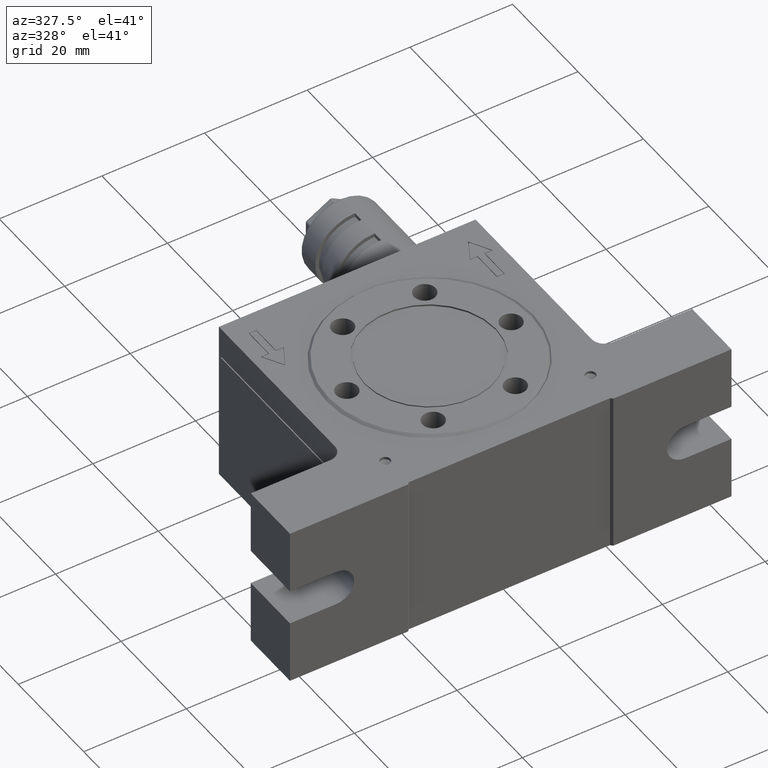
[diagram: clean part render]
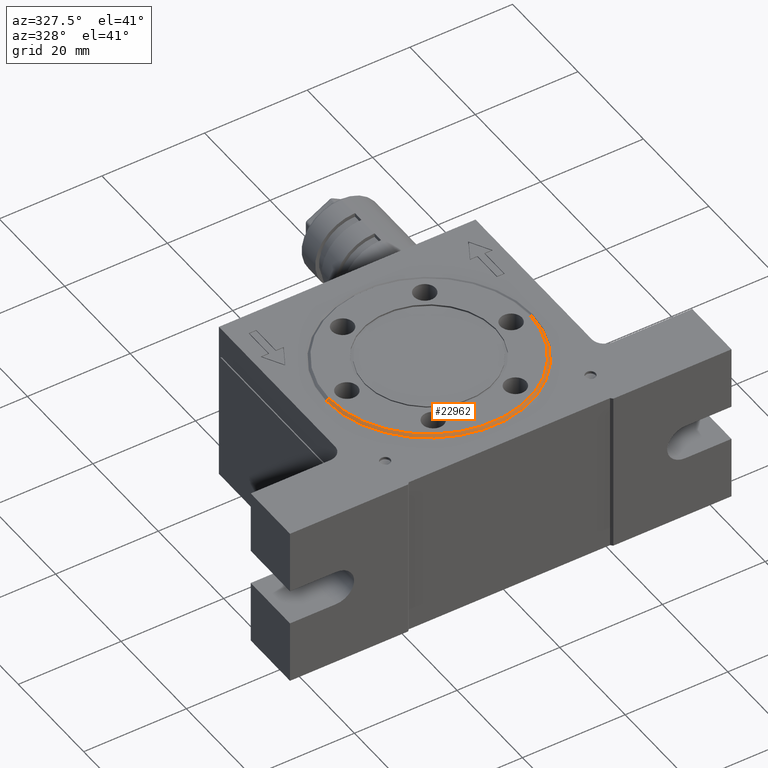
[diagram: same view with one face highlighted and labeled with its STEP entity id]
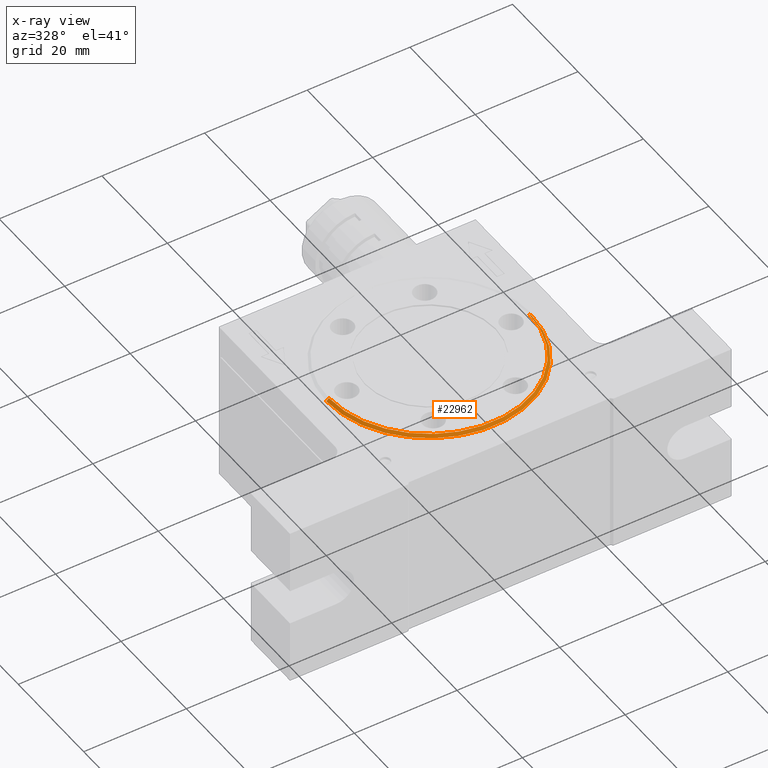
[diagram: x-ray of the same camera — body ghosted, the highlighted face saturated]
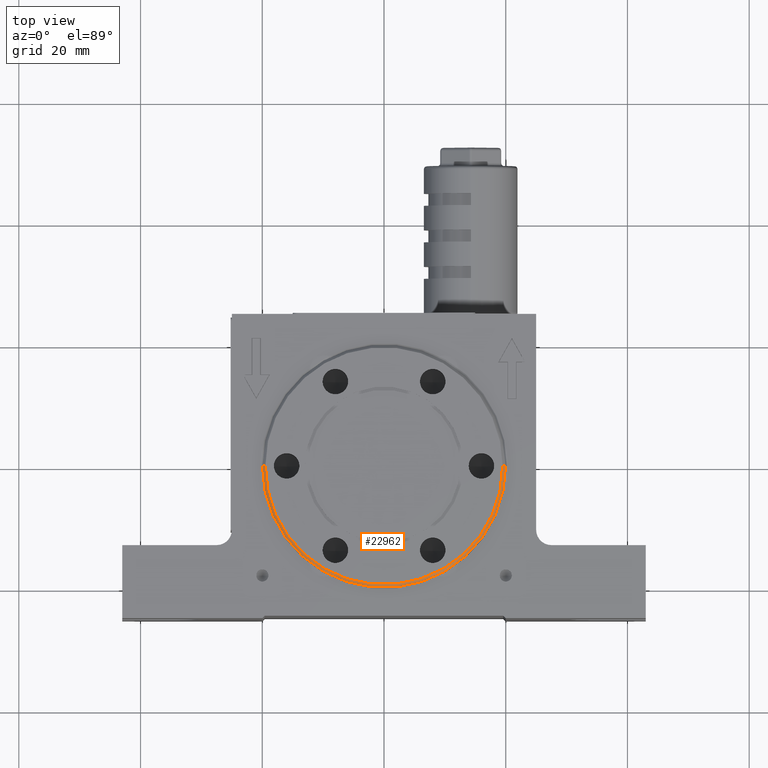
[diagram: same view with one face highlighted and labeled with its STEP entity id]
A machine part, auxiliary view. The second image highlights one B-rep face of the part: STEP entity #22962.
The next image is the same camera in x-ray: the body ghosted, the highlighted face saturated — about 0% of this face is hidden behind the body in this view.
A second angle (top view) of the same face is appended — the face is thin or edge-on in the first view.
In plain terms, the highlighted conical surface has half-angle 45 deg.
Its self-contained STEP definition (entity closure, byte-faithful):
#155 = ORIENTED_EDGE ( 'NONE', *, *, #21666, .F. ) ;
#955 = VECTOR ( 'NONE', #23234, 1000.000000000000100 ) ;
#2694 = ORIENTED_EDGE ( 'NONE', *, *, #13303, .F. ) ;
#4870 = VECTOR ( 'NONE', #19465, 1000.000000000000100 ) ;
#5760 = EDGE_CURVE ( 'NONE', #22123, #25086, #9008, .T. ) ;
#7107 = DIRECTION ( 'NONE',  ( -1.000000000000000000, 0.0000000000000000000, 0.0000000000000000000 ) ) ;
#8504 = EDGE_LOOP ( 'NONE', ( #2694, #155, #13221, #21219 ) ) ;
#9008 = CIRCLE ( 'NONE', #13852, 20.00000000000000000 ) ;
#9231 = DIRECTION ( 'NONE',  ( 0.0000000000000000000, 0.0000000000000000000, -1.000000000000000000 ) ) ;
#9385 = CARTESIAN_POINT ( 'NONE',  ( 19.50000000000000400, 2.418677428316022700E-015, 16.25000000000000000 ) ) ;
#10158 = DIRECTION ( 'NONE',  ( -1.000000000000000000, 0.0000000000000000000, 0.0000000000000000000 ) ) ;
#10788 = EDGE_CURVE ( 'NONE', #16898, #25086, #11771, .T. ) ;
#11174 = FACE_OUTER_BOUND ( 'NONE', #8504, .T. ) ;
#11397 = CARTESIAN_POINT ( 'NONE',  ( 0.0000000000000000000, 0.0000000000000000000, 15.75000000000000000 ) ) ;
#11699 = CARTESIAN_POINT ( 'NONE',  ( -19.50000000000000400, 0.0000000000000000000, 16.25000000000000000 ) ) ;
#11771 = LINE ( 'NONE', #11699, #4870 ) ;
#13157 = CARTESIAN_POINT ( 'NONE',  ( 0.0000000000000000000, 0.0000000000000000000, 16.25000000000000000 ) ) ;
#13221 = ORIENTED_EDGE ( 'NONE', *, *, #10788, .T. ) ;
#13303 = EDGE_CURVE ( 'NONE', #16484, #22123, #19421, .T. ) ;
#13852 = AXIS2_PLACEMENT_3D ( 'NONE', #11397, #17602, #25410 ) ;
#14323 = CIRCLE ( 'NONE', #24804, 19.50000000000000400 ) ;
#16088 = AXIS2_PLACEMENT_3D ( 'NONE', #13157, #9231, #7107 ) ;
#16484 = VERTEX_POINT ( 'NONE', #9385 ) ;
#16898 = VERTEX_POINT ( 'NONE', #23260 ) ;
#17602 = DIRECTION ( 'NONE',  ( 0.0000000000000000000, 0.0000000000000000000, -1.000000000000000000 ) ) ;
#19113 = CARTESIAN_POINT ( 'NONE',  ( 19.50000000000000400, 2.388061258337339300E-015, 16.25000000000000000 ) ) ;
#19421 = LINE ( 'NONE', #19113, #955 ) ;
#19465 = DIRECTION ( 'NONE',  ( -0.7071067811865451300, 0.0000000000000000000, -0.7071067811865500200 ) ) ;
#19925 = CONICAL_SURFACE ( 'NONE', #16088, 19.50000000000000400, 0.7853981633974447300 ) ;
#20025 = DIRECTION ( 'NONE',  ( -0.0000000000000000000, -0.0000000000000000000, 1.000000000000000000 ) ) ;
#21219 = ORIENTED_EDGE ( 'NONE', *, *, #5760, .F. ) ;
#21666 = EDGE_CURVE ( 'NONE', #16898, #16484, #14323, .T. ) ;
#22041 = CARTESIAN_POINT ( 'NONE',  ( 0.0000000000000000000, 0.0000000000000000000, 16.25000000000000000 ) ) ;
#22123 = VERTEX_POINT ( 'NONE', #25877 ) ;
#22962 = ADVANCED_FACE ( 'NONE', ( #11174 ), #19925, .T. ) ;
#23234 = DIRECTION ( 'NONE',  ( 0.7071067811865451300, 8.659560562354903300E-017, -0.7071067811865500200 ) ) ;
#23260 = CARTESIAN_POINT ( 'NONE',  ( -19.50000000000000400, 0.0000000000000000000, 16.25000000000000000 ) ) ;
#24672 = CARTESIAN_POINT ( 'NONE',  ( -20.00000000000000000, 2.449293598294706500E-015, 15.75000000000000000 ) ) ;
#24804 = AXIS2_PLACEMENT_3D ( 'NONE', #22041, #20025, #10158 ) ;
#25086 = VERTEX_POINT ( 'NONE', #24672 ) ;
#25410 = DIRECTION ( 'NONE',  ( -1.000000000000000000, 0.0000000000000000000, 0.0000000000000000000 ) ) ;
#25877 = CARTESIAN_POINT ( 'NONE',  ( 20.00000000000000000, 0.0000000000000000000, 15.75000000000000000 ) ) ;